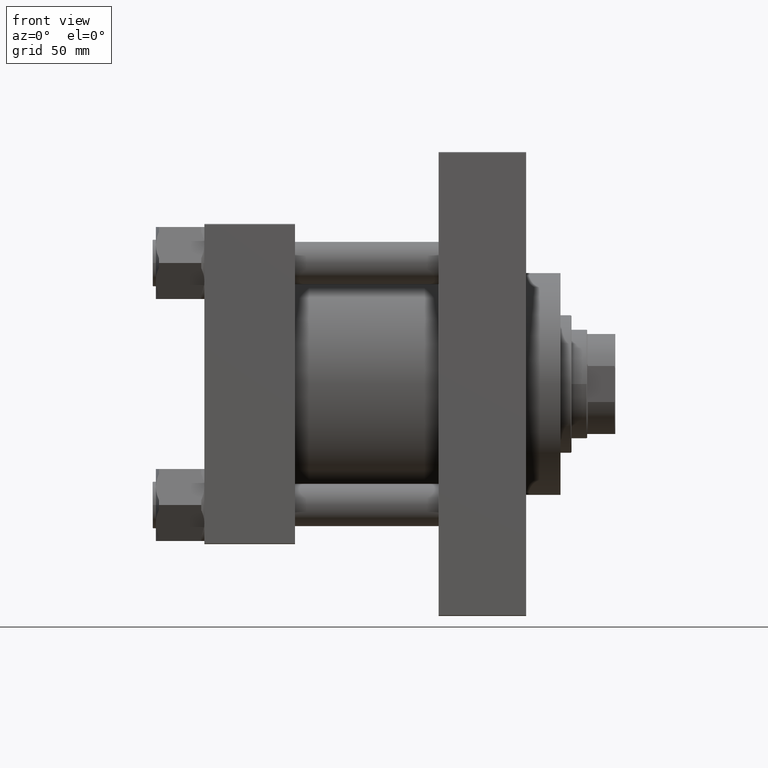
[diagram: clean part render]
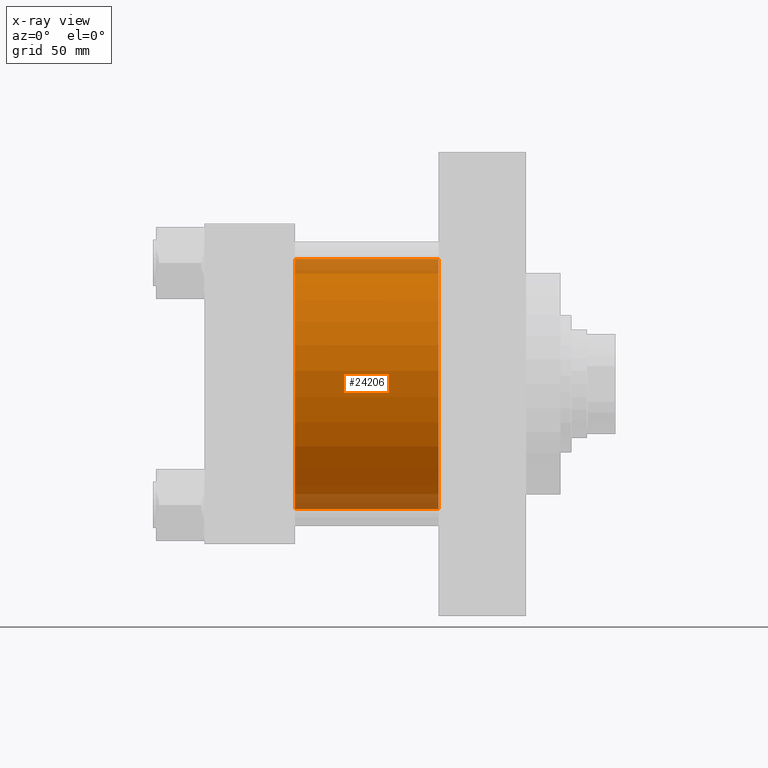
[diagram: x-ray — body ghosted, one internal face saturated and labeled with its STEP entity id]
A machine part, front view, then the same camera in x-ray: the body is ghosted and one INTERNAL B-rep face — a face not visible from any outside direction — is saturated and labeled: STEP entity #24206.
In plain terms, the highlighted cylindrical surface (partial cylindrical patch) has radius 80 mm, axis along (-1, -0, -0).
Its self-contained STEP definition (entity closure, byte-faithful):
#2430 = CARTESIAN_POINT ( 'NONE',  ( 150.0000000000000000, -2.602085213965210642E-15, 0.000000000000000000 ) ) ;
#3031 = DIRECTION ( 'NONE',  ( -1.000000000000000000, -0.000000000000000000, -0.000000000000000000 ) ) ;
#4367 = LINE ( 'NONE', #29692, #45358 ) ;
#7960 = DIRECTION ( 'NONE',  ( -1.000000000000000000, -0.000000000000000000, -0.000000000000000000 ) ) ;
#8288 = EDGE_CURVE ( 'NONE', #31184, #34698, #4367, .T. ) ;
#9667 = DIRECTION ( 'NONE',  ( 0.000000000000000000, 0.000000000000000000, -1.000000000000000000 ) ) ;
#10648 = VECTOR ( 'NONE', #3031, 1000.000000000000000 ) ;
#11638 = EDGE_CURVE ( 'NONE', #39565, #34698, #23864, .T. ) ;
#13528 = CARTESIAN_POINT ( 'NONE',  ( 150.0000000000000000, -2.602085213965210642E-15, 0.000000000000000000 ) ) ;
#16229 = AXIS2_PLACEMENT_3D ( 'NONE', #2430, #24363, #9667 ) ;
#17062 = EDGE_CURVE ( 'NONE', #34269, #31184, #23928, .T. ) ;
#17146 = FACE_OUTER_BOUND ( 'NONE', #26657, .T. ) ;
#18431 = ORIENTED_EDGE ( 'NONE', *, *, #45193, .F. ) ;
#20766 = ORIENTED_EDGE ( 'NONE', *, *, #8288, .T. ) ;
#21293 = CARTESIAN_POINT ( 'NONE',  ( 58.00000000000000000, -2.602085213965210642E-15, 80.00000000000000000 ) ) ;
#21334 = LINE ( 'NONE', #36058, #10648 ) ;
#23864 = CIRCLE ( 'NONE', #26229, 80.00000000000000000 ) ;
#23928 = CIRCLE ( 'NONE', #16229, 80.00000000000000000 ) ;
#24206 = ADVANCED_FACE ( 'NONE', ( #17146 ), #31854, .F. ) ;
#24363 = DIRECTION ( 'NONE',  ( 1.000000000000000000, 0.000000000000000000, 0.000000000000000000 ) ) ;
#26229 = AXIS2_PLACEMENT_3D ( 'NONE', #26788, #41493, #41727 ) ;
#26657 = EDGE_LOOP ( 'NONE', ( #28520, #20766, #29125, #18431 ) ) ;
#26788 = CARTESIAN_POINT ( 'NONE',  ( 58.00000000000000000, -2.602085213965210642E-15, 0.000000000000000000 ) ) ;
#28520 = ORIENTED_EDGE ( 'NONE', *, *, #17062, .T. ) ;
#29125 = ORIENTED_EDGE ( 'NONE', *, *, #11638, .F. ) ;
#29530 = AXIS2_PLACEMENT_3D ( 'NONE', #13528, #7960, #40758 ) ;
#29692 = CARTESIAN_POINT ( 'NONE',  ( 150.0000000000000000, 7.195089179213615410E-15, -80.00000000000000000 ) ) ;
#31184 = VERTEX_POINT ( 'NONE', #43404 ) ;
#31854 = CYLINDRICAL_SURFACE ( 'NONE', #29530, 80.00000000000000000 ) ;
#34269 = VERTEX_POINT ( 'NONE', #47505 ) ;
#34698 = VERTEX_POINT ( 'NONE', #41218 ) ;
#36058 = CARTESIAN_POINT ( 'NONE',  ( 150.0000000000000000, -2.602085213965210642E-15, 80.00000000000000000 ) ) ;
#39565 = VERTEX_POINT ( 'NONE', #21293 ) ;
#40758 = DIRECTION ( 'NONE',  ( 0.000000000000000000, 0.000000000000000000, 1.000000000000000000 ) ) ;
#41017 = DIRECTION ( 'NONE',  ( -1.000000000000000000, -0.000000000000000000, -0.000000000000000000 ) ) ;
#41218 = CARTESIAN_POINT ( 'NONE',  ( 58.00000000000000000, 7.195089179213615410E-15, -80.00000000000000000 ) ) ;
#41493 = DIRECTION ( 'NONE',  ( 1.000000000000000000, 0.000000000000000000, 0.000000000000000000 ) ) ;
#41727 = DIRECTION ( 'NONE',  ( 0.000000000000000000, 0.000000000000000000, -1.000000000000000000 ) ) ;
#43404 = CARTESIAN_POINT ( 'NONE',  ( 150.0000000000000000, 7.195089179213615410E-15, -80.00000000000000000 ) ) ;
#45193 = EDGE_CURVE ( 'NONE', #34269, #39565, #21334, .T. ) ;
#45358 = VECTOR ( 'NONE', #41017, 1000.000000000000000 ) ;
#47505 = CARTESIAN_POINT ( 'NONE',  ( 150.0000000000000000, -2.602085213965210642E-15, 80.00000000000000000 ) ) ;